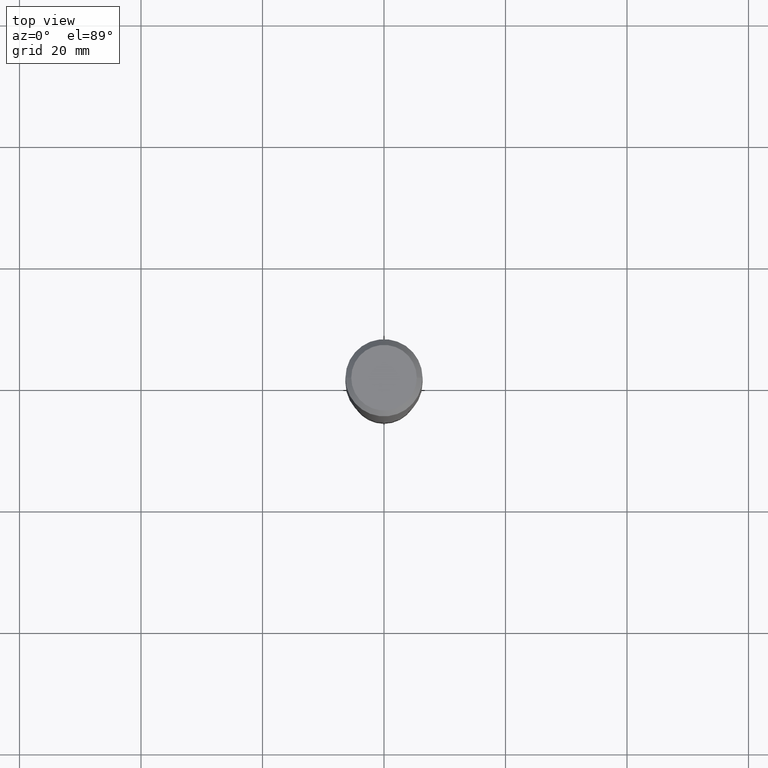
[diagram: clean part render]
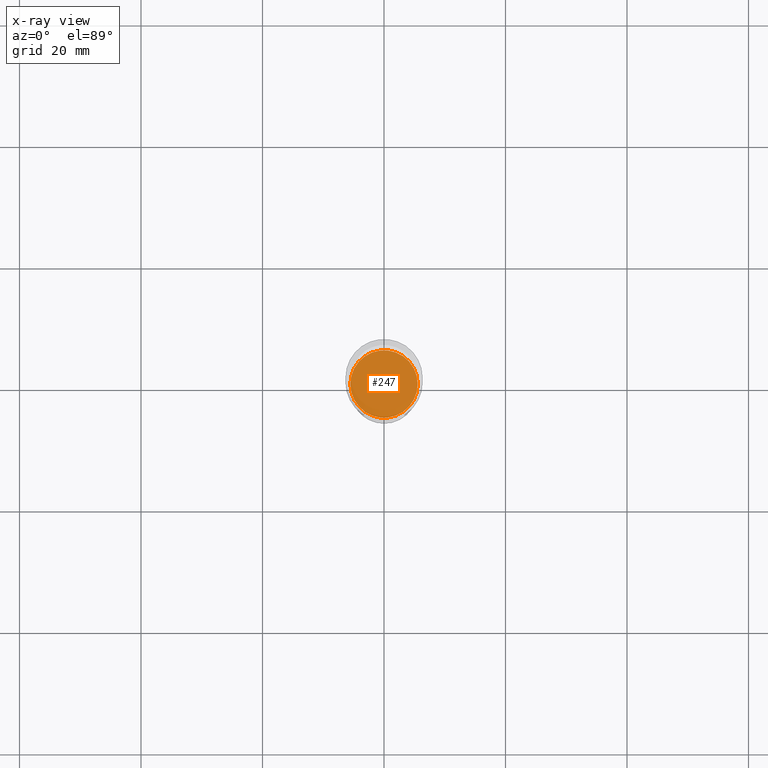
[diagram: x-ray — body ghosted, one internal face saturated and labeled with its STEP entity id]
A machine part, top view, then the same camera in x-ray: the body is ghosted and one INTERNAL B-rep face — a face not visible from any outside direction — is saturated and labeled: STEP entity #247.
In plain terms, the highlighted planar face has unit normal (-0, 0, 1).
Its self-contained STEP definition (entity closure, byte-faithful):
#20 = DIRECTION ( 'NONE',  ( -2.445468806185136597E-29, 3.491481338843145583E-15, 1.000000000000000000 ) ) ;
#22 = CARTESIAN_POINT ( 'NONE',  ( 5.807988414689700538E-29, -8.292268179752471696E-15, -2.375000000000000000 ) ) ;
#24 = CARTESIAN_POINT ( 'NONE',  ( 5.807988414689700538E-29, -8.292268179752471696E-15, -2.375000000000000000 ) ) ;
#57 = CIRCLE ( 'NONE', #406, 0.2182499999999999996 ) ;
#82 = ORIENTED_EDGE ( 'NONE', *, *, #203, .F. ) ;
#94 = CARTESIAN_POINT ( 'NONE',  ( 5.807988414689700538E-29, -8.292268179752471696E-15, -2.375000000000000000 ) ) ;
#102 = EDGE_CURVE ( 'NONE', #454, #471, #368, .T. ) ;
#170 = DIRECTION ( 'NONE',  ( 1.000000000000000000, -6.982962677686269077E-15, 0.000000000000000000 ) ) ;
#203 = EDGE_CURVE ( 'NONE', #471, #454, #57, .T. ) ;
#213 = DIRECTION ( 'NONE',  ( 1.000000000000000000, -6.982962677686269077E-15, 0.000000000000000000 ) ) ;
#247 = ADVANCED_FACE ( 'NONE', ( #287 ), #436, .F. ) ;
#254 = DIRECTION ( 'NONE',  ( 1.000000000000000000, -6.982962677686265922E-15, 4.876176775795935793E-29 ) ) ;
#287 = FACE_OUTER_BOUND ( 'NONE', #467, .T. ) ;
#298 = ORIENTED_EDGE ( 'NONE', *, *, #102, .F. ) ;
#327 = DIRECTION ( 'NONE',  ( -2.445468806185136597E-29, 3.491481338843145583E-15, 1.000000000000000000 ) ) ;
#350 = AXIS2_PLACEMENT_3D ( 'NONE', #94, #327, #213 ) ;
#363 = DIRECTION ( 'NONE',  ( -2.438088387897960049E-29, 3.491481338843145188E-15, 1.000000000000000000 ) ) ;
#368 = CIRCLE ( 'NONE', #350, 0.2182499999999999996 ) ;
#383 = CARTESIAN_POINT ( 'NONE',  ( 0.2182499999999999996, -9.816299784157498742E-15, -2.375000000000000000 ) ) ;
#387 = CARTESIAN_POINT ( 'NONE',  ( -0.2182499999999999996, -6.738859431781942236E-15, -2.375000000000000000 ) ) ;
#406 = AXIS2_PLACEMENT_3D ( 'NONE', #22, #20, #170 ) ;
#431 = AXIS2_PLACEMENT_3D ( 'NONE', #24, #363, #254 ) ;
#436 = PLANE ( 'NONE',  #431 ) ;
#454 = VERTEX_POINT ( 'NONE', #383 ) ;
#467 = EDGE_LOOP ( 'NONE', ( #298, #82 ) ) ;
#471 = VERTEX_POINT ( 'NONE', #387 ) ;